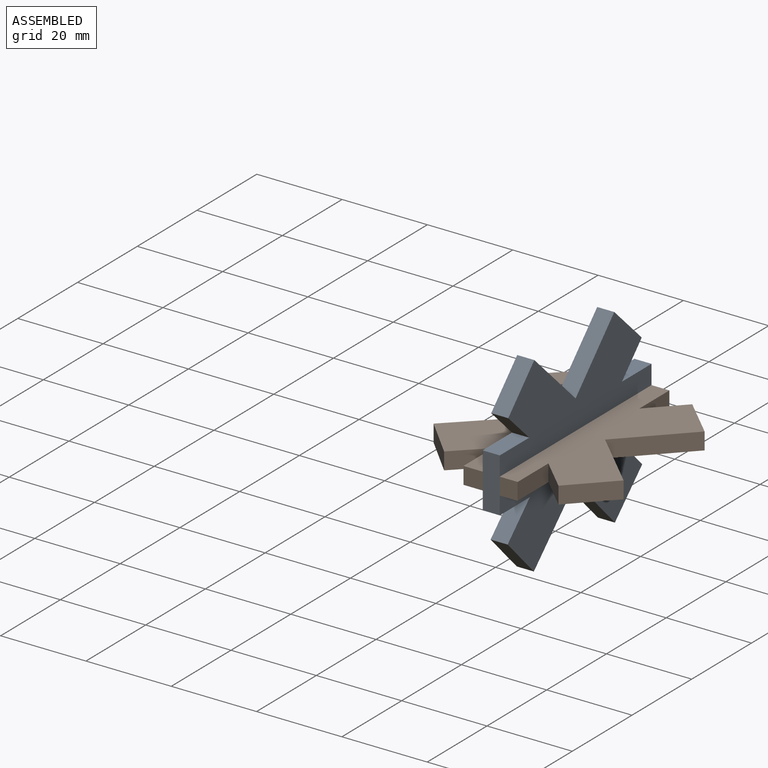
[diagram: assembled view]
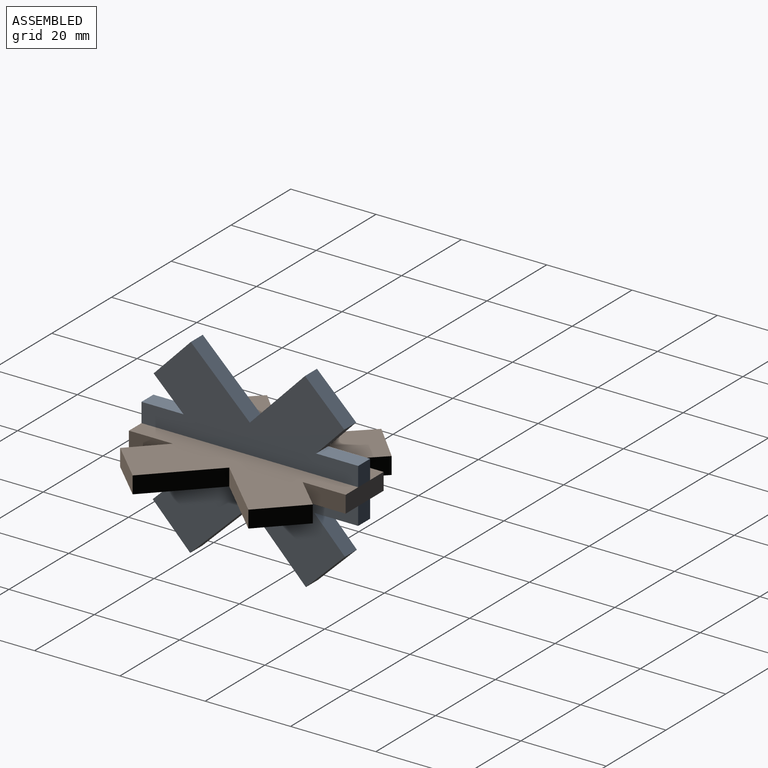
[diagram: assembled view, second angle]
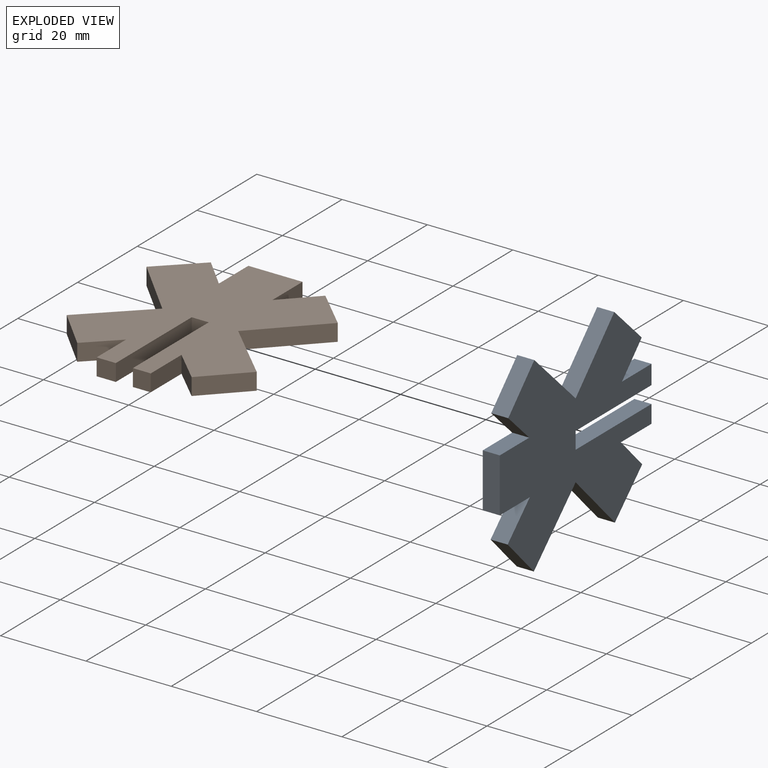
[diagram: exploded view]
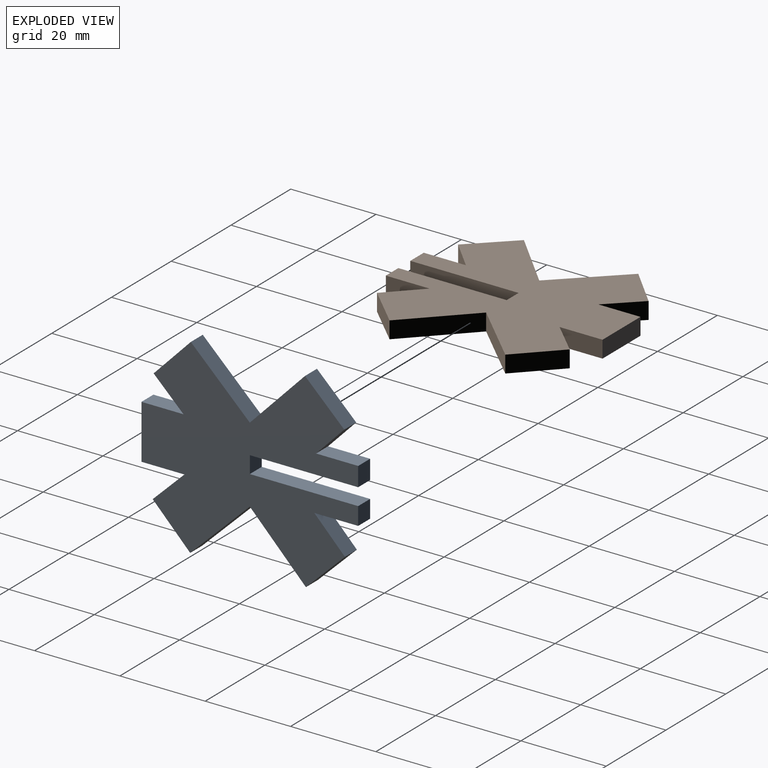
[diagram: exploded view, second angle]
ASSEMBLY  parts=2 mates=3
PART A: 24 faces, bbox 44.7x50.8x4 mm
  f0: plane 25.4x4mm, normal (-1,0,0), area 101.6mm2, adj f1,f21,f22,f23
  f1: plane 4.19x4mm, normal (0,-1,0), area 16.8mm2, adj f0,f2,f22,f23
  f2: plane 10.28x4mm, normal (1,0,0), area 41.1mm2, adj f1,f3,f22,f23
  f3: plane 7.39x7.17mm, normal (-0.7,-0.72,0), area 41.2mm2, adj f2,f4,f22,f23
  f4: plane 9.14x8.86mm, normal (0.72,-0.7,0), area 50.9mm2, adj f3,f5,f22,f23
  f5: plane 13.56x13.15mm, normal (0.7,0.72,0), area 75.5mm2, adj f4,f6,f22,f23
  f6: plane 13.98x13.56mm, normal (0.72,-0.7,0), area 77.9mm2, adj f5,f7,f22,f23
  f7: plane 9.05x8.78mm, normal (0.7,0.72,0), area 50.4mm2, adj f6,f8,f22,f23
  f8: plane 7.43x7.21mm, normal (-0.72,0.7,0), area 41.4mm2, adj f7,f9,f22,f23
  f9: plane 10.07x4mm, normal (1,0,0), area 40.3mm2, adj f8,f10,f22,f23
  f10: plane 12.7x4mm, normal (0,1,0), area 50.8mm2, adj f9,f11,f22,f23
  f11: plane 9.86x4mm, normal (-1,0,0), area 39.4mm2, adj f10,f12,f22,f23
  f12: plane 7.01x6.79mm, normal (0.72,0.7,0), area 39mm2, adj f11,f13,f22,f23
  f13: plane 8.99x8.71mm, normal (-0.7,0.72,0), area 50.1mm2, adj f12,f14,f22,f23
  f14: plane 13.83x13.4mm, normal (-0.72,-0.7,0), area 77mm2, adj f13,f15,f22,f23
  f15: plane 13.35x12.94mm, normal (-0.7,0.72,0), area 74.4mm2, adj f14,f16,f22,f23
  f16: plane 9.2x8.91mm, normal (-0.72,-0.7,0), area 51.2mm2, adj f15,f17,f22,f23
  f17: plane 6.82x6.61mm, normal (0.7,-0.72,0), area 38mm2, adj f16,f18,f22,f23
  f18: plane 9.87x4mm, normal (-1,0,0), area 39.5mm2, adj f17,f19,f22,f23
  f19: plane 4.51x4mm, normal (0,-1,0), area 18mm2, adj f18,f20,f22,f23
  f20: plane 25.4x4mm, normal (1,0,0), area 101.6mm2, adj f19,f21,f22,f23
  f21: plane 4x4mm, normal (0,-1,0), area 16mm2, adj f0,f20,f22,f23
  f22: plane 50.8x44.74mm, normal (0,0,1), area 1357mm2, adj f0,f1,f2,f3,f4,f5,f6,f7
  f23: plane 50.8x44.74mm, normal (0,0,-1), area 1357mm2, adj f0,f1,f2,f3,f4,f5,f6,f7
PART B: same geometry as A
PLACE A rot(axis=(0.71,0,-0.71),180deg) t=(-11.37,54.5,56.38)mm
PLACE B t=(-13.37,54.5,54.38)mm
MATE planar B.f20 <-> A.f22  axis (1,0,0) through (-15.37,41.8,56.38)mm
MATE fastened B.f21 <-> A.f21  axis (0,-1,0) through (-13.37,54.5,56.38)mm
MATE planar B.f23 <-> A.f0  axis (0,0,-1) through (-19.88,34.03,54.38)mm
